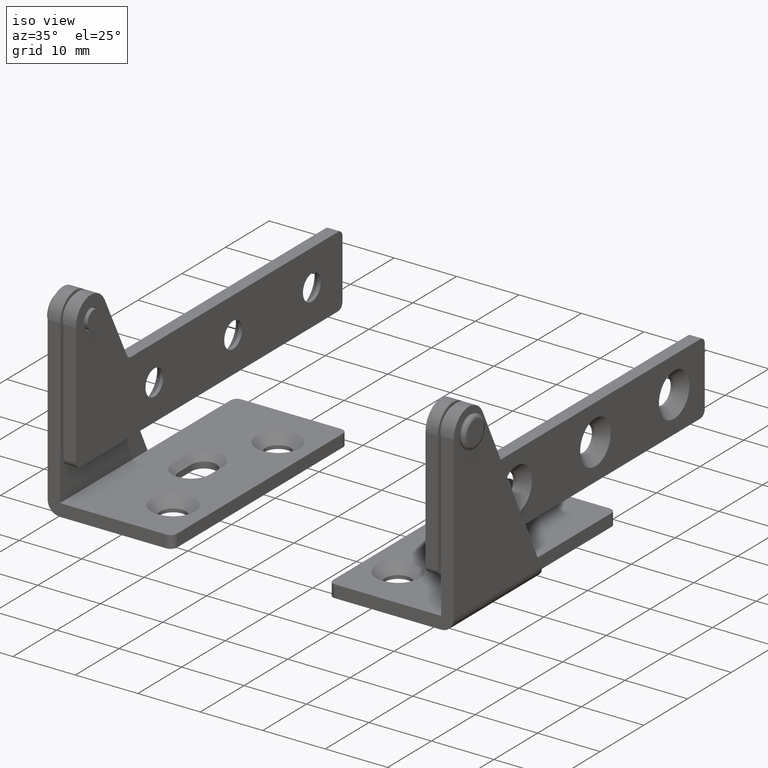
[diagram: clean part render]
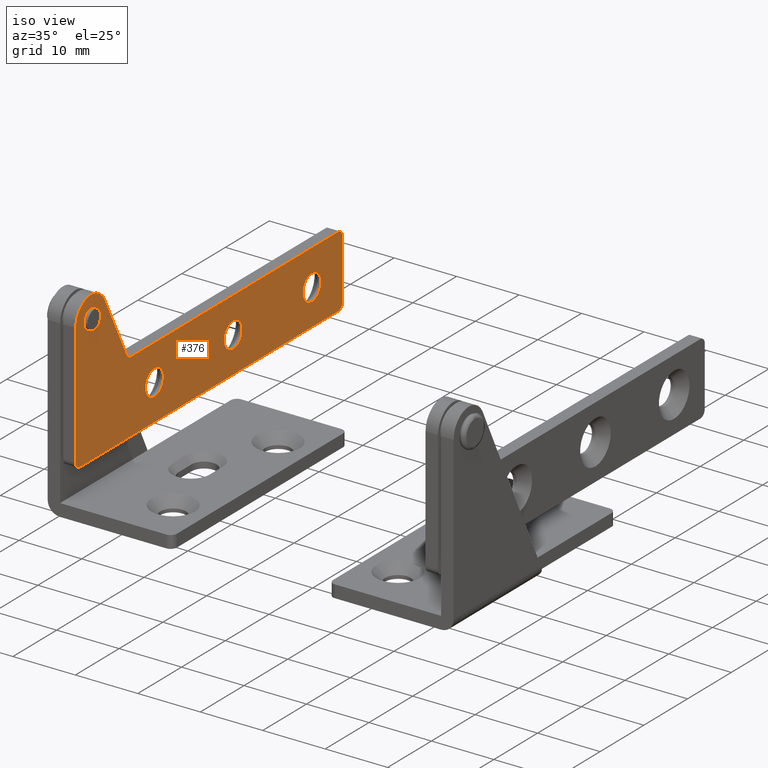
[diagram: same view with one face highlighted and labeled with its STEP entity id]
A machine part, iso view. The second image highlights one B-rep face of the part: STEP entity #376.
In plain terms, the highlighted planar face has unit normal (1, 0, 0).
Its self-contained STEP definition (entity closure, byte-faithful):
#376=ADVANCED_FACE('',(#908,#909,#910,#911,#912),#907,.T.);
#907=PLANE('',#2304);
#908=FACE_OUTER_BOUND('',#2305,.T.);
#909=FACE_BOUND('',#2306,.T.);
#910=FACE_BOUND('',#2307,.T.);
#911=FACE_BOUND('',#2308,.T.);
#912=FACE_BOUND('',#2309,.T.);
#2301=CARTESIAN_POINT('',(-6.36000000000E+001,2.00000000000E+000,-2.29546784500E+001));
#2302=DIRECTION('',(-0.00000000000E+000,1.00000000000E+000,0.00000000000E+000));
#2303=DIRECTION('',(0.00000000000E+000,0.00000000000E+000,1.00000000000E+000));
#2304=AXIS2_PLACEMENT_3D('',#2301,#2302,#2303);
#2305=EDGE_LOOP('',(#3238,#3239,#3240,#3241,#3242,#3243,#3244,#3245,#3246,#3247));
#2306=EDGE_LOOP('',(#3248,#3249));
#2307=EDGE_LOOP('',(#3250,#3251));
#2308=EDGE_LOOP('',(#3252,#3253));
#2309=EDGE_LOOP('',(#3254,#3255));
#3238=ORIENTED_EDGE('',*,*,#3836,.F.);
#3239=ORIENTED_EDGE('',*,*,#3841,.F.);
#3240=ORIENTED_EDGE('',*,*,#3842,.F.);
#3241=ORIENTED_EDGE('',*,*,#3843,.F.);
#3242=ORIENTED_EDGE('',*,*,#3844,.T.);
#3243=ORIENTED_EDGE('',*,*,#3845,.F.);
#3244=ORIENTED_EDGE('',*,*,#3846,.F.);
#3245=ORIENTED_EDGE('',*,*,#3847,.F.);
#3246=ORIENTED_EDGE('',*,*,#3848,.F.);
#3247=ORIENTED_EDGE('',*,*,#3839,.F.);
#3248=ORIENTED_EDGE('',*,*,#3849,.T.);
#3249=ORIENTED_EDGE('',*,*,#3850,.T.);
#3250=ORIENTED_EDGE('',*,*,#3851,.T.);
#3251=ORIENTED_EDGE('',*,*,#3852,.T.);
#3252=ORIENTED_EDGE('',*,*,#3853,.T.);
#3253=ORIENTED_EDGE('',*,*,#3854,.T.);
#3254=ORIENTED_EDGE('',*,*,#3855,.F.);
#3255=ORIENTED_EDGE('',*,*,#3856,.F.);
#3836=EDGE_CURVE('',#4733,#4740,#4741,.T.);
#3839=EDGE_CURVE('',#4740,#4760,#4761,.T.);
#3841=EDGE_CURVE('',#4773,#4733,#4774,.T.);
#3842=EDGE_CURVE('',#4780,#4773,#4781,.T.);
#3843=EDGE_CURVE('',#4787,#4780,#4788,.T.);
#3844=EDGE_CURVE('',#4787,#4794,#4795,.T.);
#3845=EDGE_CURVE('',#4801,#4794,#4802,.T.);
#3846=EDGE_CURVE('',#4808,#4801,#4809,.T.);
#3847=EDGE_CURVE('',#4815,#4808,#4816,.T.);
#3848=EDGE_CURVE('',#4760,#4815,#4822,.T.);
#3849=EDGE_CURVE('',#4828,#4829,#4830,.T.);
#3850=EDGE_CURVE('',#4829,#4828,#4836,.T.);
#3851=EDGE_CURVE('',#4842,#4843,#4844,.T.);
#3852=EDGE_CURVE('',#4843,#4842,#4850,.T.);
#3853=EDGE_CURVE('',#4856,#4857,#4858,.T.);
#3854=EDGE_CURVE('',#4857,#4856,#4864,.T.);
#3855=EDGE_CURVE('',#4870,#4871,#4872,.T.);
#3856=EDGE_CURVE('',#4871,#4870,#4878,.T.);
#4733=VERTEX_POINT('',#6800);
#4740=VERTEX_POINT('',#6804);
#4741=CIRCLE('',#6808,1.00000000000E+000);
#4760=VERTEX_POINT('',#6816);
#4761=LINE('',#6817,#6818);
#4773=VERTEX_POINT('',#6823);
#4774=LINE('',#6824,#6825);
#4780=VERTEX_POINT('',#6827);
#4781=CIRCLE('',#6831,1.00000000000E+000);
#4787=VERTEX_POINT('',#6832);
#4788=LINE('',#6833,#6834);
#4794=VERTEX_POINT('',#6836);
#4795=CIRCLE('',#6840,1.00000000000E+000);
#4801=VERTEX_POINT('',#6841);
#4802=LINE('',#6842,#6843);
#4808=VERTEX_POINT('',#6845);
#4809=CIRCLE('',#6849,3.50000000000E+000);
#4815=VERTEX_POINT('',#6850);
#4816=LINE('',#6851,#6852);
#4822=CIRCLE('',#6857,1.00000000000E+000);
#4828=VERTEX_POINT('',#6858);
#4829=VERTEX_POINT('',#6859);
#4830=CIRCLE('',#6863,2.05000000000E+000);
#4836=CIRCLE('',#6867,2.05000000000E+000);
#4842=VERTEX_POINT('',#6868);
#4843=VERTEX_POINT('',#6869);
#4844=CIRCLE('',#6873,2.05000000000E+000);
#4850=CIRCLE('',#6877,2.05000000000E+000);
#4856=VERTEX_POINT('',#6878);
#4857=VERTEX_POINT('',#6879);
#4858=CIRCLE('',#6883,2.05000000000E+000);
#4864=CIRCLE('',#6887,2.05000000000E+000);
#4870=VERTEX_POINT('',#6888);
#4871=VERTEX_POINT('',#6889);
#4872=CIRCLE('',#6893,1.60000000000E+000);
#4878=CIRCLE('',#6897,1.60000000000E+000);
#6800=CARTESIAN_POINT('',(-5.75000000000E+001,2.00000000000E+000,-1.95000000000E+001));
#6804=CARTESIAN_POINT('',(-5.65000000000E+001,2.00000000000E+000,-2.05000000000E+001));
#6805=CARTESIAN_POINT('',(-5.65000000000E+001,2.00000000000E+000,-1.95000000000E+001));
#6806=DIRECTION('',(0.00000000000E+000,-1.00000000000E+000,0.00000000000E+000));
#6807=DIRECTION('',(-0.00000000000E+000,-0.00000000000E+000,-1.00000000000E+000));
#6808=AXIS2_PLACEMENT_3D('',#6805,#6806,#6807);
#6816=CARTESIAN_POINT('',(2.50000000000E+000,2.00000000000E+000,-2.05000000000E+001));
#6817=CARTESIAN_POINT('',(-5.65000000000E+001,2.00000000000E+000,-2.05000000000E+001));
#6818=VECTOR('',#6819,5.90000000000E+001);
#6819=DIRECTION('',(1.00000000000E+000,0.00000000000E+000,0.00000000000E+000));
#6823=CARTESIAN_POINT('',(-5.75000000000E+001,2.00000000000E+000,-1.00000000000E+001));
#6824=CARTESIAN_POINT('',(-5.75000000000E+001,2.00000000000E+000,-1.00000000000E+001));
#6825=VECTOR('',#6826,9.50000000000E+000);
#6826=DIRECTION('',(0.00000000000E+000,0.00000000000E+000,-1.00000000000E+000));
#6827=CARTESIAN_POINT('',(-5.65000000000E+001,2.00000000000E+000,-9.00000000000E+000));
#6828=CARTESIAN_POINT('',(-5.65000000000E+001,2.00000000000E+000,-1.00000000000E+001));
#6829=DIRECTION('',(0.00000000000E+000,-1.00000000000E+000,0.00000000000E+000));
#6830=DIRECTION('',(-0.00000000000E+000,-0.00000000000E+000,-1.00000000000E+000));
#6831=AXIS2_PLACEMENT_3D('',#6828,#6829,#6830);
#6832=CARTESIAN_POINT('',(-9.11351674310E+000,2.00000000000E+000,-9.00000000000E+000));
#6833=CARTESIAN_POINT('',(-9.11351674310E+000,2.00000000000E+000,-9.00000000000E+000));
#6834=VECTOR('',#6835,4.73864832569E+001);
#6835=DIRECTION('',(-1.00000000000E+000,0.00000000000E+000,0.00000000000E+000));
#6836=CARTESIAN_POINT('',(-8.22203825185E+000,2.00000000000E+000,-8.45306301951E+000));
#6837=CARTESIAN_POINT('',(-9.11351674310E+000,2.00000000000E+000,-8.00000000000E+000));
#6838=DIRECTION('',(0.00000000000E+000,-1.00000000000E+000,0.00000000000E+000));
#6839=DIRECTION('',(-0.00000000000E+000,-0.00000000000E+000,-1.00000000000E+000));
#6840=AXIS2_PLACEMENT_3D('',#6837,#6838,#6839);
#6841=CARTESIAN_POINT('',(-3.12017471936E+000,2.00000000000E+000,1.58572056828E+000));
#6842=CARTESIAN_POINT('',(-3.12017471936E+000,2.00000000000E+000,1.58572056828E+000));
#6843=VECTOR('',#6844,1.12608253439E+001);
#6844=DIRECTION('',(-4.53063019509E-001,0.00000000000E+000,-8.91478491245E-001));
#6845=CARTESIAN_POINT('',(3.50000000000E+000,2.00000000000E+000,0.00000000000E+000));
#6846=CARTESIAN_POINT('',(0.00000000000E+000,2.00000000000E+000,0.00000000000E+000));
#6847=DIRECTION('',(0.00000000000E+000,-1.00000000000E+000,0.00000000000E+000));
#6848=DIRECTION('',(-0.00000000000E+000,-0.00000000000E+000,-1.00000000000E+000));
#6849=AXIS2_PLACEMENT_3D('',#6846,#6847,#6848);
#6850=CARTESIAN_POINT('',(3.50000000000E+000,2.00000000000E+000,-1.95000000000E+001));
#6851=CARTESIAN_POINT('',(3.50000000000E+000,2.00000000000E+000,-1.95000000000E+001));
#6852=VECTOR('',#6853,1.95000000000E+001);
#6853=DIRECTION('',(0.00000000000E+000,0.00000000000E+000,1.00000000000E+000));
#6854=CARTESIAN_POINT('',(2.50000000000E+000,2.00000000000E+000,-1.95000000000E+001));
#6855=DIRECTION('',(0.00000000000E+000,-1.00000000000E+000,0.00000000000E+000));
#6856=DIRECTION('',(-0.00000000000E+000,-0.00000000000E+000,-1.00000000000E+000));
#6857=AXIS2_PLACEMENT_3D('',#6854,#6855,#6856);
#6858=CARTESIAN_POINT('',(-5.05000000000E+001,2.00000000000E+000,-1.27000000000E+001));
#6859=CARTESIAN_POINT('',(-5.05000000000E+001,2.00000000000E+000,-1.68000000000E+001));
#6860=CARTESIAN_POINT('',(-5.05000000000E+001,2.00000000000E+000,-1.47500000000E+001));
#6861=DIRECTION('',(0.00000000000E+000,-1.00000000000E+000,0.00000000000E+000));
#6862=DIRECTION('',(-1.22460635382E-016,0.00000000000E+000,1.00000000000E+000));
#6863=AXIS2_PLACEMENT_3D('',#6860,#6861,#6862);
#6864=CARTESIAN_POINT('',(-5.05000000000E+001,2.00000000000E+000,-1.47500000000E+001));
#6865=DIRECTION('',(0.00000000000E+000,-1.00000000000E+000,0.00000000000E+000));
#6866=DIRECTION('',(-1.22460635382E-016,0.00000000000E+000,1.00000000000E+000));
#6867=AXIS2_PLACEMENT_3D('',#6864,#6865,#6866);
#6868=CARTESIAN_POINT('',(-3.25000000000E+001,2.00000000000E+000,-1.27000000000E+001));
#6869=CARTESIAN_POINT('',(-3.25000000000E+001,2.00000000000E+000,-1.68000000000E+001));
#6870=CARTESIAN_POINT('',(-3.25000000000E+001,2.00000000000E+000,-1.47500000000E+001));
#6871=DIRECTION('',(0.00000000000E+000,-1.00000000000E+000,0.00000000000E+000));
#6872=DIRECTION('',(-1.22460635382E-016,0.00000000000E+000,1.00000000000E+000));
#6873=AXIS2_PLACEMENT_3D('',#6870,#6871,#6872);
#6874=CARTESIAN_POINT('',(-3.25000000000E+001,2.00000000000E+000,-1.47500000000E+001));
#6875=DIRECTION('',(0.00000000000E+000,-1.00000000000E+000,0.00000000000E+000));
#6876=DIRECTION('',(-1.22460635382E-016,0.00000000000E+000,1.00000000000E+000));
#6877=AXIS2_PLACEMENT_3D('',#6874,#6875,#6876);
#6878=CARTESIAN_POINT('',(-1.45000000000E+001,2.00000000000E+000,-1.27000000000E+001));
#6879=CARTESIAN_POINT('',(-1.45000000000E+001,2.00000000000E+000,-1.68000000000E+001));
#6880=CARTESIAN_POINT('',(-1.45000000000E+001,2.00000000000E+000,-1.47500000000E+001));
#6881=DIRECTION('',(0.00000000000E+000,-1.00000000000E+000,0.00000000000E+000));
#6882=DIRECTION('',(-1.22460635382E-016,0.00000000000E+000,1.00000000000E+000));
#6883=AXIS2_PLACEMENT_3D('',#6880,#6881,#6882);
#6884=CARTESIAN_POINT('',(-1.45000000000E+001,2.00000000000E+000,-1.47500000000E+001));
#6885=DIRECTION('',(0.00000000000E+000,-1.00000000000E+000,0.00000000000E+000));
#6886=DIRECTION('',(-1.22460635382E-016,0.00000000000E+000,1.00000000000E+000));
#6887=AXIS2_PLACEMENT_3D('',#6884,#6885,#6886);
#6888=CARTESIAN_POINT('',(7.40148683083E-017,2.00000000000E+000,-1.60000000000E+000));
#6889=CARTESIAN_POINT('',(0.00000000000E+000,2.00000000000E+000,1.60000000000E+000));
#6890=CARTESIAN_POINT('',(0.00000000000E+000,2.00000000000E+000,0.00000000000E+000));
#6891=DIRECTION('',(0.00000000000E+000,1.00000000000E+000,-0.00000000000E+000));
#6892=DIRECTION('',(-1.22460635382E-016,0.00000000000E+000,1.00000000000E+000));
#6893=AXIS2_PLACEMENT_3D('',#6890,#6891,#6892);
#6894=CARTESIAN_POINT('',(0.00000000000E+000,2.00000000000E+000,0.00000000000E+000));
#6895=DIRECTION('',(0.00000000000E+000,1.00000000000E+000,-0.00000000000E+000));
#6896=DIRECTION('',(-1.22460635382E-016,0.00000000000E+000,1.00000000000E+000));
#6897=AXIS2_PLACEMENT_3D('',#6894,#6895,#6896);